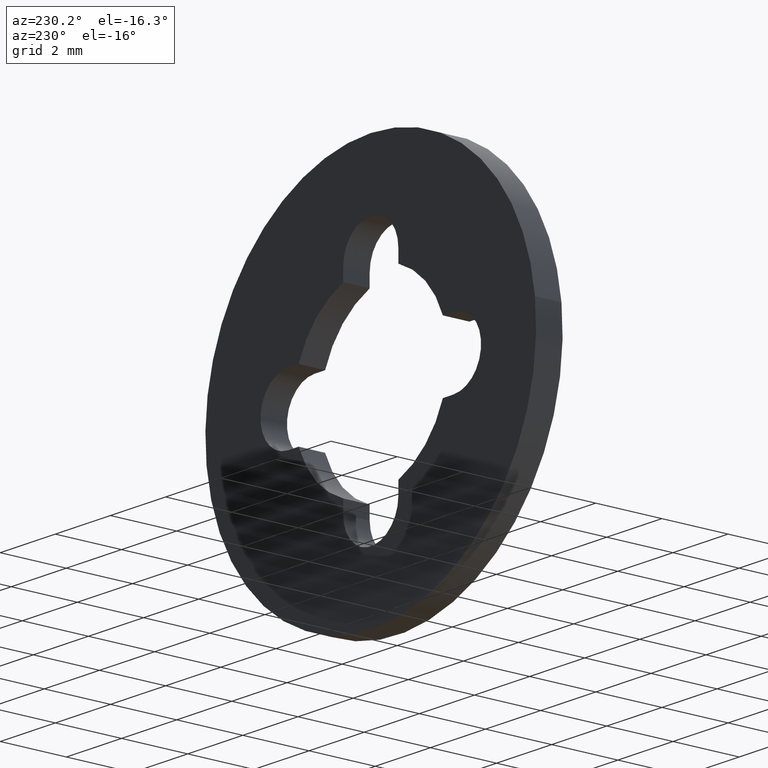
[diagram: clean part render]
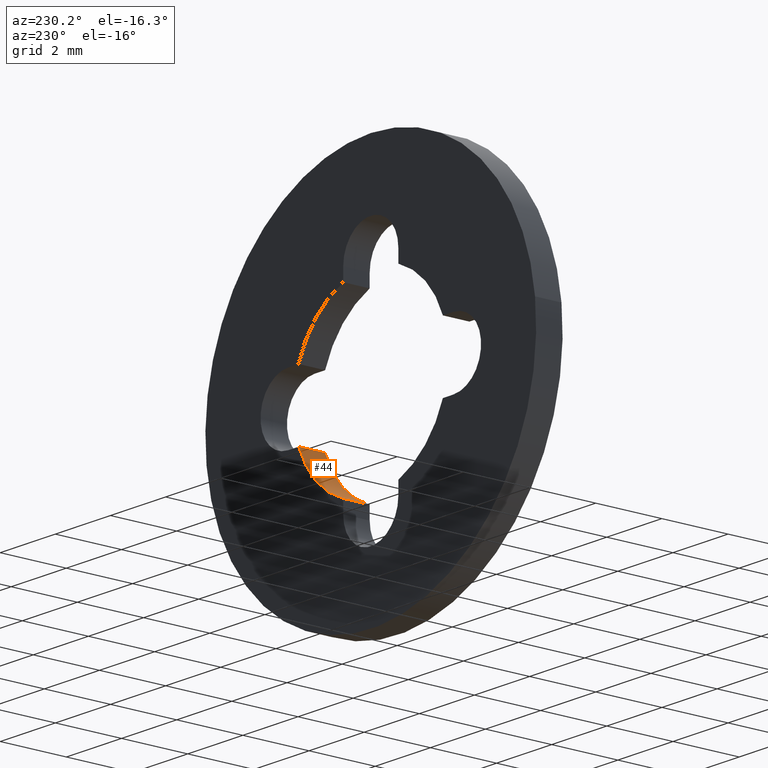
[diagram: same view with one face highlighted and labeled with its STEP entity id]
A machine part, auxiliary view. The second image highlights one B-rep face of the part: STEP entity #44.
In plain terms, the highlighted cylindrical surface (partial cylindrical patch) has radius 2.8 mm, axis along (0, -1, -0).
Its self-contained STEP definition (entity closure, byte-faithful):
#44=ADVANCED_FACE('',(#103),#102,.F.);
#102=CYLINDRICAL_SURFACE('',#287,2.80000000000E+00);
#103=FACE_OUTER_BOUND('',#288,.T.);
#284=CARTESIAN_POINT('',(1.15068919589E-15,-2.05000000000E-02,-4.54454560204E-16));
#285=DIRECTION('',(9.62907109129E-17,-1.00000000000E+00,-2.46647242216E-17));
#286=DIRECTION('',(-9.47712741255E-01,-9.91270557701E-17,3.19124677929E-01));
#287=AXIS2_PLACEMENT_3D('',#284,#285,#286);
#288=EDGE_LOOP('',(#410,#411,#412,#413));
#410=ORIENTED_EDGE('',*,*,#501,.T.);
#411=ORIENTED_EDGE('',*,*,#516,.F.);
#412=ORIENTED_EDGE('',*,*,#493,.F.);
#413=ORIENTED_EDGE('',*,*,#517,.T.);
#493=EDGE_CURVE('',#645,#652,#653,.T.);
#501=EDGE_CURVE('',#708,#701,#709,.T.);
#516=EDGE_CURVE('',#652,#701,#810,.T.);
#517=EDGE_CURVE('',#645,#708,#816,.T.);
#645=VERTEX_POINT('',#981);
#652=VERTEX_POINT('',#985);
#653=CIRCLE('',#989,2.80000000000E+00);
#701=VERTEX_POINT('',#1018);
#708=VERTEX_POINT('',#1022);
#709=CIRCLE('',#1026,2.80000000000E+00);
#810=LINE('',#1086,#1087);
#816=LINE('',#1089,#1090);
#981=CARTESIAN_POINT('',(1.00000000000E+00,8.00000000000E-01,-2.61533936612E+00));
#985=CARTESIAN_POINT('',(2.61533936612E+00,8.00000000000E-01,-1.00000000000E+00));
#986=CARTESIAN_POINT('',(3.99680288865E-15,8.00000000000E-01,-4.21884749358E-15));
#987=DIRECTION('',(-1.13485789453E-17,-1.00000000000E+00,-4.33923761186E-18));
#988=DIRECTION('',(-3.57142857143E-01,-0.00000000000E+00,9.34049773616E-01));
#989=AXIS2_PLACEMENT_3D('',#986,#987,#988);
#1018=CARTESIAN_POINT('',(2.61533936612E+00,0.00000000000E+00,-1.00000000000E+00));
#1022=CARTESIAN_POINT('',(1.00000000000E+00,0.00000000000E+00,-2.61533936612E+00));
#1023=CARTESIAN_POINT('',(3.99680288865E-15,0.00000000000E+00,-4.21884749358E-15));
#1024=DIRECTION('',(0.00000000000E+00,-1.00000000000E+00,0.00000000000E+00));
#1025=DIRECTION('',(-3.57142857143E-01,-0.00000000000E+00,9.34049773616E-01));
#1026=AXIS2_PLACEMENT_3D('',#1023,#1024,#1025);
#1086=CARTESIAN_POINT('',(2.61533936612E+00,8.00000000000E-01,-1.00000000000E+00));
#1087=VECTOR('',#1088,8.00000000000E-01);
#1088=DIRECTION('',(0.00000000000E+00,-1.00000000000E+00,0.00000000000E+00));
#1089=CARTESIAN_POINT('',(1.00000000000E+00,8.00000000000E-01,-2.61533936612E+00));
#1090=VECTOR('',#1091,8.00000000000E-01);
#1091=DIRECTION('',(0.00000000000E+00,-1.00000000000E+00,0.00000000000E+00));